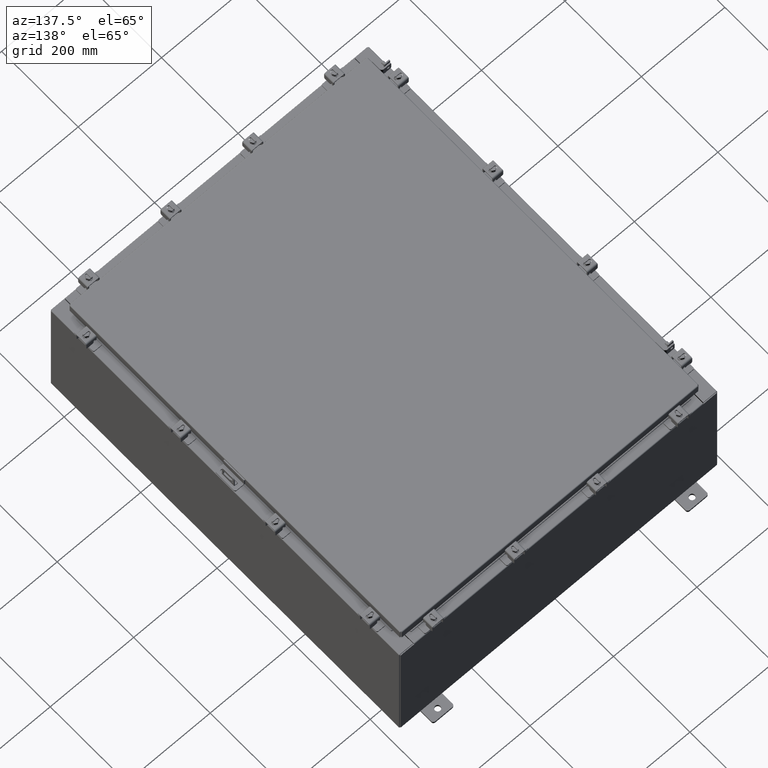
[diagram: clean part render]
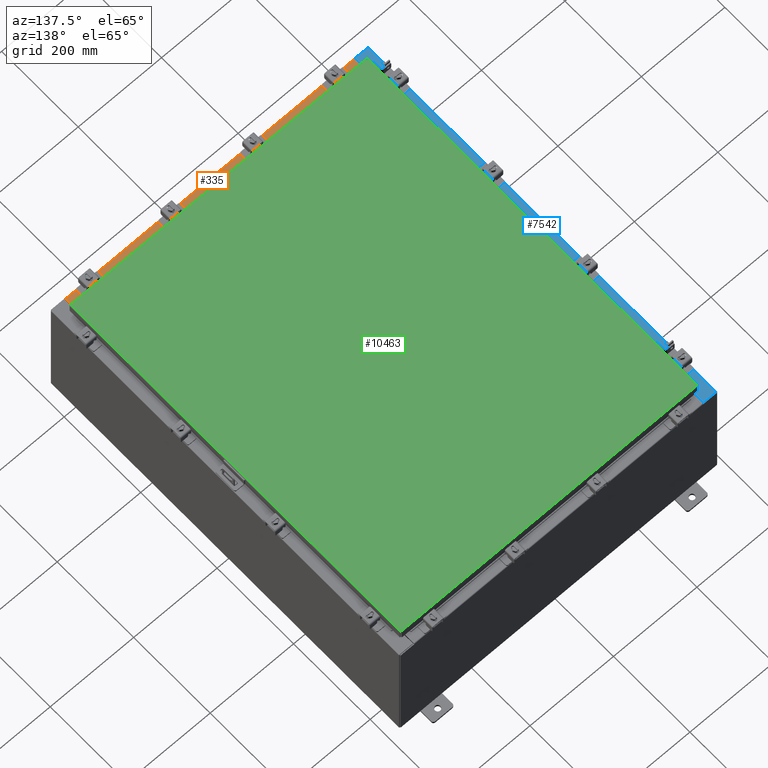
[diagram: same view with three faces highlighted in distinct colors, each labeled with its STEP entity id]
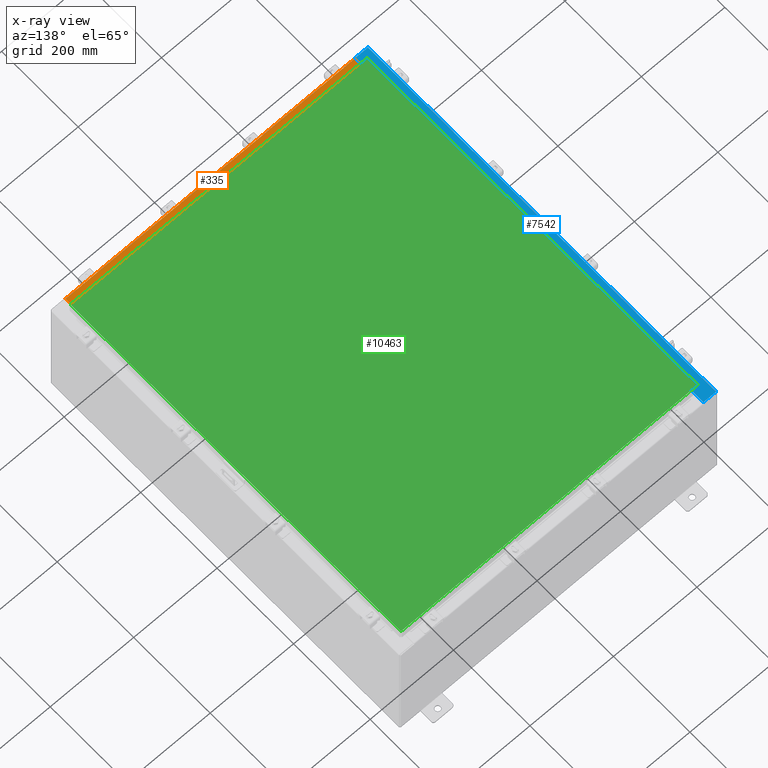
[diagram: x-ray of the same camera — body ghosted, the three highlighted faces saturated]
A machine part, auxiliary view with three faces highlighted in distinct colors.
The next image is the same camera in x-ray (body ghosted, the three faces saturated) — at least one of them is partly hidden behind the body in this view.
Their STEP definitions:

[orange] entity #335 — the highlighted planar face has unit normal (-0, -0, 1).
#188 = VERTEX_POINT ( 'NONE', #9526 ) ;
#191 = CARTESIAN_POINT ( 'NONE',  ( 13.63720000000000400, -1.300299999999999800, 6.000000000000003600 ) ) ;
#335 = ADVANCED_FACE ( 'NONE', ( #18755 ), #17356, .T. ) ;
#1005 = VERTEX_POINT ( 'NONE', #1544 ) ;
#1066 = EDGE_CURVE ( 'NONE', #188, #2888, #20774, .T. ) ;
#1544 = CARTESIAN_POINT ( 'NONE',  ( 13.63720000000000400, -1.287299999999999900, 6.000000000000003600 ) ) ;
#1632 = DIRECTION ( 'NONE',  ( -1.000000000000000000, 4.006464660875052000E-017, -1.428858021605520200E-031 ) ) ;
#1942 = AXIS2_PLACEMENT_3D ( 'NONE', #19268, #17264, #5846 ) ;
#2888 = VERTEX_POINT ( 'NONE', #10806 ) ;
#3713 = CARTESIAN_POINT ( 'NONE',  ( -13.63719999999999800, -1.287299999999999200, 6.000000000000003600 ) ) ;
#5459 = CARTESIAN_POINT ( 'NONE',  ( -3.513669507588266700E-018, -0.08769999999999972300, 5.999999999999999100 ) ) ;
#5572 = ORIENTED_EDGE ( 'NONE', *, *, #17556, .F. ) ;
#5846 = DIRECTION ( 'NONE',  ( 0.0000000000000000000, -1.000000000000000000, 3.566381192773190000E-015 ) ) ;
#6896 = VERTEX_POINT ( 'NONE', #3713 ) ;
#7365 = LINE ( 'NONE', #191, #21865 ) ;
#9227 = ORIENTED_EDGE ( 'NONE', *, *, #21158, .F. ) ;
#9485 = VECTOR ( 'NONE', #1632, 39.37007874015748100 ) ;
#9526 = CARTESIAN_POINT ( 'NONE',  ( 13.63720000000000400, -0.08769999999999937600, 5.999999999999999100 ) ) ;
#9945 = DIRECTION ( 'NONE',  ( -1.000000000000000000, 0.0000000000000000000, 0.0000000000000000000 ) ) ;
#10299 = EDGE_CURVE ( 'NONE', #6896, #2888, #16209, .T. ) ;
#10806 = CARTESIAN_POINT ( 'NONE',  ( -13.63719999999999800, -0.08769999999999972300, 5.999999999999999100 ) ) ;
#11153 = VECTOR ( 'NONE', #19726, 39.37007874015748100 ) ;
#13987 = CARTESIAN_POINT ( 'NONE',  ( -13.63719999999999800, -0.07469999999999973900, 5.999999999999999100 ) ) ;
#15532 = ORIENTED_EDGE ( 'NONE', *, *, #10299, .F. ) ;
#16209 = LINE ( 'NONE', #13987, #11153 ) ;
#17264 = DIRECTION ( 'NONE',  ( 0.0000000000000000000, 3.566381192773190000E-015, 1.000000000000000000 ) ) ;
#17356 = PLANE ( 'NONE',  #1942 ) ;
#17556 = EDGE_CURVE ( 'NONE', #188, #1005, #7365, .T. ) ;
#18755 = FACE_OUTER_BOUND ( 'NONE', #19247, .T. ) ;
#19247 = EDGE_LOOP ( 'NONE', ( #15532, #9227, #5572, #23940 ) ) ;
#19268 = CARTESIAN_POINT ( 'NONE',  ( 0.0000000000000000000, 2.139269213755056400E-014, 5.999999999999999100 ) ) ;
#19726 = DIRECTION ( 'NONE',  ( -0.0000000000000000000, 1.000000000000000000, -3.566381192773190000E-015 ) ) ;
#20774 = LINE ( 'NONE', #5459, #9485 ) ;
#21058 = DIRECTION ( 'NONE',  ( -0.0000000000000000000, -1.000000000000000000, 3.566381192773190000E-015 ) ) ;
#21158 = EDGE_CURVE ( 'NONE', #1005, #6896, #23666, .T. ) ;
#21865 = VECTOR ( 'NONE', #21058, 39.37007874015748100 ) ;
#23068 = VECTOR ( 'NONE', #9945, 39.37007874015748100 ) ;
#23206 = CARTESIAN_POINT ( 'NONE',  ( 13.63720000000000400, -1.287299999999999900, 6.000000000000003600 ) ) ;
#23666 = LINE ( 'NONE', #23206, #23068 ) ;
#23940 = ORIENTED_EDGE ( 'NONE', *, *, #1066, .T. ) ;

[blue] entity #7542 — the highlighted planar face has unit normal (0, 0, -1).
#73 = CARTESIAN_POINT ( 'NONE',  ( -13.69970000000004400, -16.63109999999998600, 11.92530000000000900 ) ) ;
#179 = EDGE_CURVE ( 'NONE', #10368, #4532, #12169, .T. ) ;
#229 = VERTEX_POINT ( 'NONE', #7393 ) ;
#452 = EDGE_CURVE ( 'NONE', #2999, #14907, #16939, .T. ) ;
#1287 = LINE ( 'NONE', #2680, #10748 ) ;
#1729 = EDGE_CURVE ( 'NONE', #21683, #4281, #7713, .T. ) ;
#1731 = DIRECTION ( 'NONE',  ( 1.000000000000000000, 0.0000000000000000000, 0.0000000000000000000 ) ) ;
#1852 = EDGE_LOOP ( 'NONE', ( #15785, #2623, #10921, #20729, #13688, #24042, #6350, #10440, #10127, #18633, #8792, #17640 ) ) ;
#2117 = DIRECTION ( 'NONE',  ( 1.000000000000000000, 0.0000000000000000000, -4.340572780400098900E-014 ) ) ;
#2418 = VECTOR ( 'NONE', #15916, 39.37007874015748100 ) ;
#2623 = ORIENTED_EDGE ( 'NONE', *, *, #452, .T. ) ;
#2645 = VECTOR ( 'NONE', #22622, 39.37007874015748100 ) ;
#2680 = CARTESIAN_POINT ( 'NONE',  ( -14.91230000000004500, 17.92530000000000000, 11.92530000000000000 ) ) ;
#2999 = VERTEX_POINT ( 'NONE', #14953 ) ;
#3050 = LINE ( 'NONE', #23408, #8107 ) ;
#4281 = VERTEX_POINT ( 'NONE', #73 ) ;
#4291 = VECTOR ( 'NONE', #21276, 39.37007874015748100 ) ;
#4424 = EDGE_CURVE ( 'NONE', #14988, #16174, #9890, .T. ) ;
#4532 = VERTEX_POINT ( 'NONE', #12040 ) ;
#4961 = VECTOR ( 'NONE', #23672, 39.37007874015748100 ) ;
#5100 = EDGE_CURVE ( 'NONE', #8691, #229, #1287, .T. ) ;
#5221 = CARTESIAN_POINT ( 'NONE',  ( -13.75005000000004400, -16.59374999999998900, 11.92530000000000900 ) ) ;
#5673 = DIRECTION ( 'NONE',  ( 1.000000000000000000, 0.0000000000000000000, 0.0000000000000000000 ) ) ;
#5818 = LINE ( 'NONE', #13446, #20921 ) ;
#6125 = CARTESIAN_POINT ( 'NONE',  ( -13.71270000000004600, 16.59374999999999600, 11.92530000000001200 ) ) ;
#6350 = ORIENTED_EDGE ( 'NONE', *, *, #11245, .F. ) ;
#6505 = VERTEX_POINT ( 'NONE', #8201 ) ;
#6635 = AXIS2_PLACEMENT_3D ( 'NONE', #24421, #13048, #1731 ) ;
#7169 = VECTOR ( 'NONE', #10534, 39.37007874015748100 ) ;
#7393 = CARTESIAN_POINT ( 'NONE',  ( -14.91230000000004500, 17.92530000000000000, 11.92530000000000000 ) ) ;
#7404 = EDGE_CURVE ( 'NONE', #10543, #6505, #18746, .T. ) ;
#7542 = ADVANCED_FACE ( 'NONE', ( #8053 ), #21025, .F. ) ;
#7648 = CARTESIAN_POINT ( 'NONE',  ( -13.69970000000004400, -17.92530000000000000, 11.92530000000000900 ) ) ;
#7713 = LINE ( 'NONE', #16919, #2645 ) ;
#8053 = FACE_OUTER_BOUND ( 'NONE', #1852, .T. ) ;
#8107 = VECTOR ( 'NONE', #17646, 39.37007874015748100 ) ;
#8201 = CARTESIAN_POINT ( 'NONE',  ( -13.75005000000004400, -16.63109999999998600, 11.92530000000000900 ) ) ;
#8352 = LINE ( 'NONE', #23804, #7169 ) ;
#8691 = VERTEX_POINT ( 'NONE', #16502 ) ;
#8792 = ORIENTED_EDGE ( 'NONE', *, *, #15231, .F. ) ;
#9221 = VECTOR ( 'NONE', #5673, 39.37007874015748100 ) ;
#9823 = DIRECTION ( 'NONE',  ( -1.000000000000000000, 0.0000000000000000000, 0.0000000000000000000 ) ) ;
#9890 = LINE ( 'NONE', #6125, #4291 ) ;
#10001 = AXIS2_PLACEMENT_3D ( 'NONE', #24350, #20812, #22615 ) ;
#10127 = ORIENTED_EDGE ( 'NONE', *, *, #18229, .F. ) ;
#10368 = VERTEX_POINT ( 'NONE', #14143 ) ;
#10406 = EDGE_CURVE ( 'NONE', #2999, #10368, #15019, .T. ) ;
#10440 = ORIENTED_EDGE ( 'NONE', *, *, #7404, .F. ) ;
#10534 = DIRECTION ( 'NONE',  ( -1.000000000000000000, 0.0000000000000000000, -7.132762385546384700E-015 ) ) ;
#10543 = VERTEX_POINT ( 'NONE', #5221 ) ;
#10748 = VECTOR ( 'NONE', #23464, 39.37007874015748100 ) ;
#10921 = ORIENTED_EDGE ( 'NONE', *, *, #15059, .T. ) ;
#11245 = EDGE_CURVE ( 'NONE', #6505, #4281, #5818, .T. ) ;
#12040 = CARTESIAN_POINT ( 'NONE',  ( -13.75005000000004400, 16.59375000000000000, 11.92530000000000900 ) ) ;
#12169 = CIRCLE ( 'NONE', #10001, 0.01867499999999949400 ) ;
#12290 = CARTESIAN_POINT ( 'NONE',  ( -13.69970000000004400, 16.63110000000000000, 11.92530000000000900 ) ) ;
#13048 = DIRECTION ( 'NONE',  ( -7.132762385546384700E-015, -0.0000000000000000000, 1.000000000000000000 ) ) ;
#13384 = DIRECTION ( 'NONE',  ( 7.132762385546384700E-015, 0.0000000000000000000, -1.000000000000000000 ) ) ;
#13446 = CARTESIAN_POINT ( 'NONE',  ( -13.75005000000004400, -16.63109999999998600, 11.92530000000001200 ) ) ;
#13688 = ORIENTED_EDGE ( 'NONE', *, *, #14228, .T. ) ;
#14143 = CARTESIAN_POINT ( 'NONE',  ( -13.75005000000004400, 16.63110000000000000, 11.92530000000000900 ) ) ;
#14228 = EDGE_CURVE ( 'NONE', #8691, #21683, #3050, .T. ) ;
#14244 = LINE ( 'NONE', #15092, #9221 ) ;
#14907 = VERTEX_POINT ( 'NONE', #15862 ) ;
#14953 = CARTESIAN_POINT ( 'NONE',  ( -13.69970000000004400, 16.63110000000000000, 11.92530000000000900 ) ) ;
#14988 = VERTEX_POINT ( 'NONE', #16100 ) ;
#15019 = LINE ( 'NONE', #12290, #4961 ) ;
#15059 = EDGE_CURVE ( 'NONE', #14907, #229, #8352, .T. ) ;
#15092 = CARTESIAN_POINT ( 'NONE',  ( -13.75005000000004400, 16.59375000000000000, 11.92530000000001200 ) ) ;
#15231 = EDGE_CURVE ( 'NONE', #4532, #14988, #14244, .T. ) ;
#15785 = ORIENTED_EDGE ( 'NONE', *, *, #10406, .F. ) ;
#15862 = CARTESIAN_POINT ( 'NONE',  ( -13.69970000000004400, 17.92530000000000000, 11.92530000000000900 ) ) ;
#15916 = DIRECTION ( 'NONE',  ( 0.0000000000000000000, 1.000000000000000000, 0.0000000000000000000 ) ) ;
#16100 = CARTESIAN_POINT ( 'NONE',  ( -13.71270000000004600, 16.59375000000000000, 11.92530000000001200 ) ) ;
#16174 = VERTEX_POINT ( 'NONE', #20874 ) ;
#16502 = CARTESIAN_POINT ( 'NONE',  ( -14.91230000000004500, -17.92530000000000000, 11.92530000000000000 ) ) ;
#16919 = CARTESIAN_POINT ( 'NONE',  ( -13.69970000000004400, 0.0000000000000000000, 11.92530000000000900 ) ) ;
#16939 = LINE ( 'NONE', #17915, #2418 ) ;
#17640 = ORIENTED_EDGE ( 'NONE', *, *, #179, .F. ) ;
#17646 = DIRECTION ( 'NONE',  ( 1.000000000000000000, -0.0000000000000000000, 7.132762385546384700E-015 ) ) ;
#17915 = CARTESIAN_POINT ( 'NONE',  ( -13.69970000000004400, 0.0000000000000000000, 11.92530000000000900 ) ) ;
#18229 = EDGE_CURVE ( 'NONE', #16174, #10543, #23909, .T. ) ;
#18633 = ORIENTED_EDGE ( 'NONE', *, *, #4424, .F. ) ;
#18746 = CIRCLE ( 'NONE', #6635, 0.01867499999999949400 ) ;
#19158 = CARTESIAN_POINT ( 'NONE',  ( -8.531902765212701500E-014, 0.0000000000000000000, 11.92530000000010800 ) ) ;
#19489 = VECTOR ( 'NONE', #9823, 39.37007874015748100 ) ;
#20610 = AXIS2_PLACEMENT_3D ( 'NONE', #19158, #13384, #22929 ) ;
#20729 = ORIENTED_EDGE ( 'NONE', *, *, #5100, .F. ) ;
#20812 = DIRECTION ( 'NONE',  ( -7.132762385546384700E-015, -0.0000000000000000000, 1.000000000000000000 ) ) ;
#20874 = CARTESIAN_POINT ( 'NONE',  ( -13.71270000000004600, -16.59374999999998900, 11.92530000000001200 ) ) ;
#20921 = VECTOR ( 'NONE', #2117, 39.37007874015748100 ) ;
#21025 = PLANE ( 'NONE',  #20610 ) ;
#21202 = CARTESIAN_POINT ( 'NONE',  ( -13.71270000000004600, -16.59374999999998900, 11.92530000000001200 ) ) ;
#21276 = DIRECTION ( 'NONE',  ( -0.0000000000000000000, -1.000000000000000000, -0.0000000000000000000 ) ) ;
#21683 = VERTEX_POINT ( 'NONE', #7648 ) ;
#22615 = DIRECTION ( 'NONE',  ( 1.000000000000000000, 0.0000000000000000000, 0.0000000000000000000 ) ) ;
#22622 = DIRECTION ( 'NONE',  ( 0.0000000000000000000, 1.000000000000000000, 0.0000000000000000000 ) ) ;
#22929 = DIRECTION ( 'NONE',  ( -1.000000000000000000, 0.0000000000000000000, -7.132762385546384700E-015 ) ) ;
#23408 = CARTESIAN_POINT ( 'NONE',  ( -8.531902765212701500E-014, -17.92530000000000000, 11.92530000000010800 ) ) ;
#23464 = DIRECTION ( 'NONE',  ( -0.0000000000000000000, 1.000000000000000000, -0.0000000000000000000 ) ) ;
#23672 = DIRECTION ( 'NONE',  ( -1.000000000000000000, 0.0000000000000000000, 4.340572780400098900E-014 ) ) ;
#23804 = CARTESIAN_POINT ( 'NONE',  ( -8.531902765212701500E-014, 17.92530000000000000, 11.92530000000010800 ) ) ;
#23909 = LINE ( 'NONE', #21202, #19489 ) ;
#24042 = ORIENTED_EDGE ( 'NONE', *, *, #1729, .T. ) ;
#24350 = CARTESIAN_POINT ( 'NONE',  ( -13.75005000000004400, 16.61242500000000200, 11.92530000000001200 ) ) ;
#24421 = CARTESIAN_POINT ( 'NONE',  ( -13.75005000000004400, -16.61242499999998800, 11.92530000000001200 ) ) ;

[green] entity #10463 — the highlighted planar face has unit normal (0, 0, -1).
#1234 = DIRECTION ( 'NONE',  ( -1.000000000000000000, 0.0000000000000000000, -0.0000000000000000000 ) ) ;
#1524 = LINE ( 'NONE', #24209, #11574 ) ;
#1622 = LINE ( 'NONE', #15302, #16131 ) ;
#2233 = DIRECTION ( 'NONE',  ( -1.000000000000000000, -0.0000000000000000000, -0.0000000000000000000 ) ) ;
#2455 = LINE ( 'NONE', #9824, #3051 ) ;
#2475 = CARTESIAN_POINT ( 'NONE',  ( -13.99030000000000000, 17.00630000000000000, -2.048885995248197400E-016 ) ) ;
#3051 = VECTOR ( 'NONE', #2233, 39.37007874015748100 ) ;
#3269 = CARTESIAN_POINT ( 'NONE',  ( -13.99030000000000000, 17.00630000000000000, -2.048885995248197400E-016 ) ) ;
#4147 = VERTEX_POINT ( 'NONE', #5482 ) ;
#4312 = EDGE_CURVE ( 'NONE', #4147, #10540, #1622, .T. ) ;
#5186 = DIRECTION ( 'NONE',  ( 0.0000000000000000000, -1.000000000000000000, 0.0000000000000000000 ) ) ;
#5482 = CARTESIAN_POINT ( 'NONE',  ( -13.99029999999999800, -17.00630000000000300, -2.048885995248197400E-016 ) ) ;
#5520 = ORIENTED_EDGE ( 'NONE', *, *, #15096, .T. ) ;
#6409 = EDGE_CURVE ( 'NONE', #14465, #22308, #2455, .T. ) ;
#7142 = ORIENTED_EDGE ( 'NONE', *, *, #4312, .T. ) ;
#8941 = EDGE_LOOP ( 'NONE', ( #7142, #5520, #15260, #14601 ) ) ;
#9391 = FACE_OUTER_BOUND ( 'NONE', #8941, .T. ) ;
#9824 = CARTESIAN_POINT ( 'NONE',  ( 13.99029999999999600, 17.00629999999999600, 8.878505979408856000E-016 ) ) ;
#10463 = ADVANCED_FACE ( 'NONE', ( #9391 ), #22009, .F. ) ;
#10540 = VERTEX_POINT ( 'NONE', #12705 ) ;
#10652 = CARTESIAN_POINT ( 'NONE',  ( 0.0000000000000000000, 0.0000000000000000000, 0.0000000000000000000 ) ) ;
#11574 = VECTOR ( 'NONE', #16347, 39.37007874015748100 ) ;
#12547 = DIRECTION ( 'NONE',  ( 0.0000000000000000000, 0.0000000000000000000, -1.000000000000000000 ) ) ;
#12705 = CARTESIAN_POINT ( 'NONE',  ( 13.99029999999999800, -17.00630000000000700, -2.048885995248197400E-016 ) ) ;
#14465 = VERTEX_POINT ( 'NONE', #14714 ) ;
#14601 = ORIENTED_EDGE ( 'NONE', *, *, #23252, .T. ) ;
#14714 = CARTESIAN_POINT ( 'NONE',  ( 13.99029999999999600, 17.00629999999999600, 8.878505979408856000E-016 ) ) ;
#15096 = EDGE_CURVE ( 'NONE', #10540, #14465, #1524, .T. ) ;
#15260 = ORIENTED_EDGE ( 'NONE', *, *, #6409, .T. ) ;
#15302 = CARTESIAN_POINT ( 'NONE',  ( -13.99029999999999800, -17.00630000000000300, -2.048885995248197400E-016 ) ) ;
#16131 = VECTOR ( 'NONE', #17219, 39.37007874015748100 ) ;
#16347 = DIRECTION ( 'NONE',  ( 0.0000000000000000000, 1.000000000000000000, 0.0000000000000000000 ) ) ;
#16616 = AXIS2_PLACEMENT_3D ( 'NONE', #10652, #12547, #1234 ) ;
#17219 = DIRECTION ( 'NONE',  ( 1.000000000000000000, -0.0000000000000000000, -0.0000000000000000000 ) ) ;
#18585 = VECTOR ( 'NONE', #5186, 39.37007874015748100 ) ;
#22009 = PLANE ( 'NONE',  #16616 ) ;
#22308 = VERTEX_POINT ( 'NONE', #2475 ) ;
#23252 = EDGE_CURVE ( 'NONE', #22308, #4147, #24169, .T. ) ;
#24169 = LINE ( 'NONE', #3269, #18585 ) ;
#24209 = CARTESIAN_POINT ( 'NONE',  ( 13.99029999999999800, -17.00630000000000700, -2.048885995248197400E-016 ) ) ;